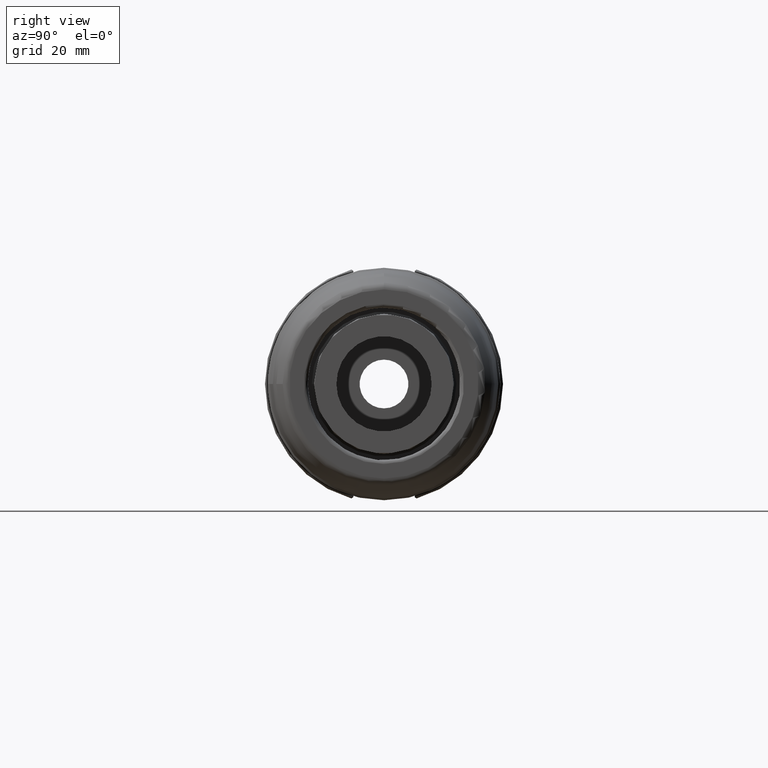
[diagram: clean part render]
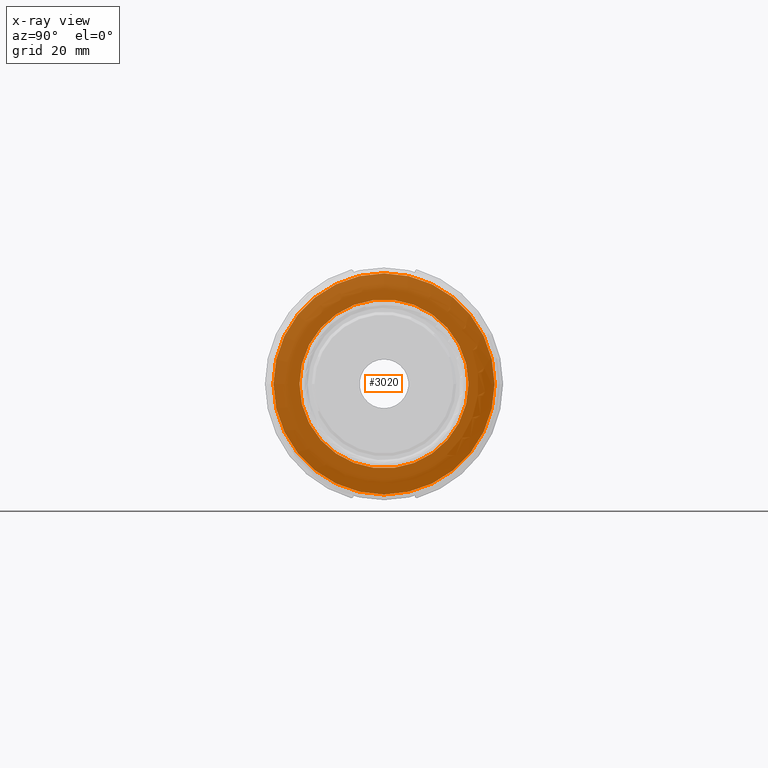
[diagram: x-ray — body ghosted, one internal face saturated and labeled with its STEP entity id]
A machine part, right view, then the same camera in x-ray: the body is ghosted and one INTERNAL B-rep face — a face not visible from any outside direction — is saturated and labeled: STEP entity #3020.
In plain terms, the highlighted planar face has unit normal (-1, 0, 0).
Its self-contained STEP definition (entity closure, byte-faithful):
#159=FACE_BOUND('',#587,.T.);
#238=PLANE('',#3365);
#399=FACE_OUTER_BOUND('',#586,.T.);
#586=EDGE_LOOP('',(#2737));
#587=EDGE_LOOP('',(#2738));
#715=CIRCLE('',#3362,22.55);
#718=CIRCLE('',#3366,29.5);
#1457=VERTEX_POINT('',#6250);
#1460=VERTEX_POINT('',#6258);
#1887=EDGE_CURVE('',#1457,#1457,#715,.T.);
#1891=EDGE_CURVE('',#1460,#1460,#718,.T.);
#2737=ORIENTED_EDGE('',*,*,#1891,.F.);
#2738=ORIENTED_EDGE('',*,*,#1887,.F.);
#3020=ADVANCED_FACE('',(#399,#159),#238,.T.);
#3362=AXIS2_PLACEMENT_3D('',#6251,#4104,#4105);
#3365=AXIS2_PLACEMENT_3D('',#6257,#4111,#4112);
#3366=AXIS2_PLACEMENT_3D('',#6259,#4113,#4114);
#4104=DIRECTION('center_axis',(-1.,0.,0.));
#4105=DIRECTION('ref_axis',(0.,-1.,0.));
#4111=DIRECTION('center_axis',(-1.,0.,0.));
#4112=DIRECTION('ref_axis',(0.,0.,1.));
#4113=DIRECTION('center_axis',(1.,0.,0.));
#4114=DIRECTION('ref_axis',(0.,-1.,1.83697019872103E-16));
#6250=CARTESIAN_POINT('',(0.,22.55,-2.76157853207728E-15));
#6251=CARTESIAN_POINT('Origin',(0.,0.,0.));
#6257=CARTESIAN_POINT('Origin',(0.,30.5,0.));
#6258=CARTESIAN_POINT('',(0.,-3.61270805748469E-15,29.5));
#6259=CARTESIAN_POINT('Origin',(0.,0.,0.));